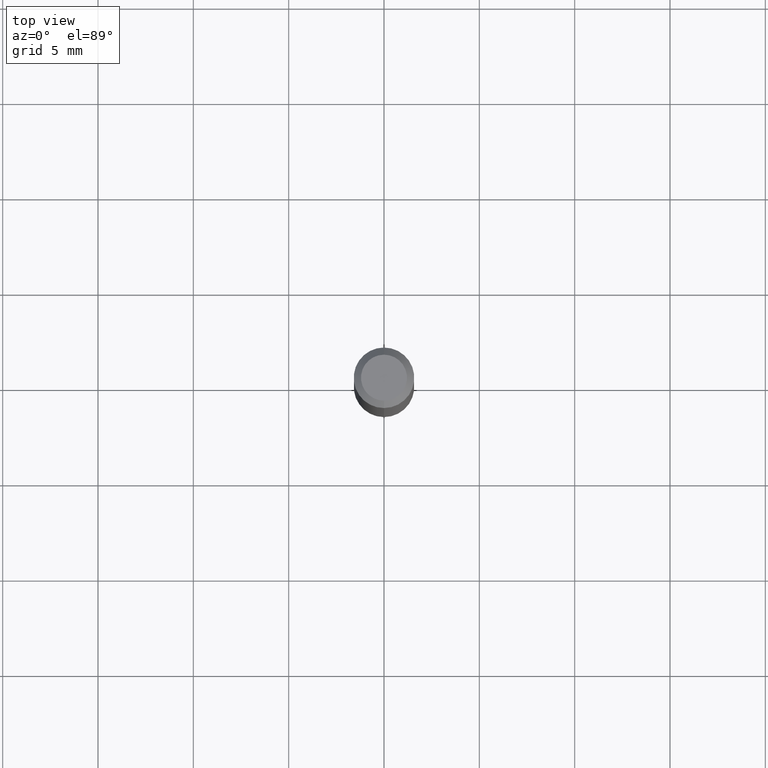
[diagram: clean part render]
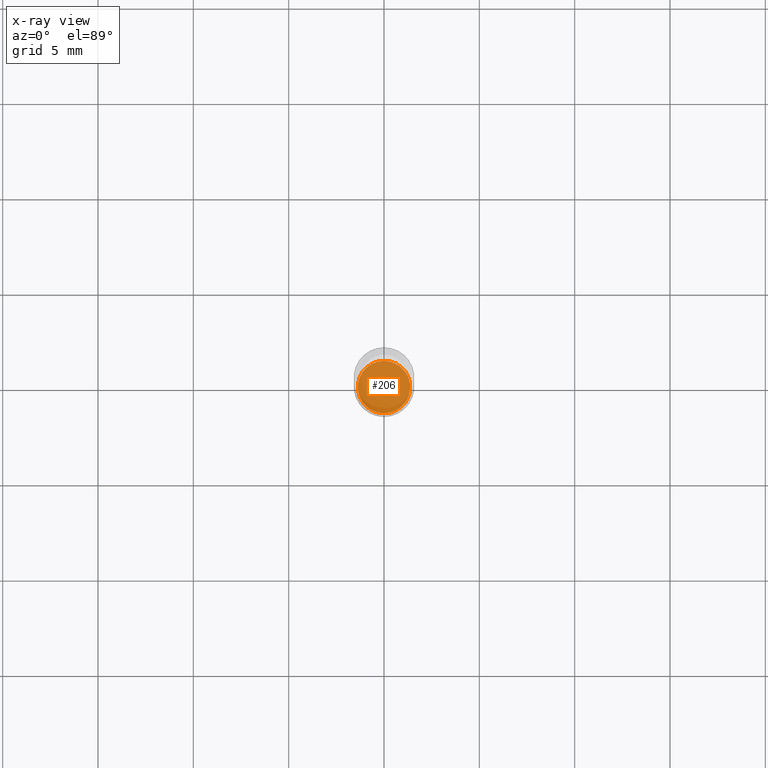
[diagram: x-ray — body ghosted, one internal face saturated and labeled with its STEP entity id]
A machine part, top view, then the same camera in x-ray: the body is ghosted and one INTERNAL B-rep face — a face not visible from any outside direction — is saturated and labeled: STEP entity #206.
In plain terms, the highlighted planar face has unit normal (-0, 0, 1).
Its self-contained STEP definition (entity closure, byte-faithful):
#20 = AXIS2_PLACEMENT_3D ( 'NONE', #40, #198, #89 ) ;
#40 = CARTESIAN_POINT ( 'NONE',  ( 2.750791567104804618E-29, -3.928433249406443724E-15, -1.125000000000000222 ) ) ;
#55 = DIRECTION ( 'NONE',  ( -2.445148059648714686E-29, 3.491940666139061088E-15, 1.000000000000000000 ) ) ;
#58 = EDGE_CURVE ( 'NONE', #65, #387, #85, .T. ) ;
#65 = VERTEX_POINT ( 'NONE', #97 ) ;
#85 = CIRCLE ( 'NONE', #20, 0.05419999999999999818 ) ;
#89 = DIRECTION ( 'NONE',  ( -6.982962677686266711E-15, -1.000000000000000000, 2.520154975705040126E-15 ) ) ;
#97 = CARTESIAN_POINT ( 'NONE',  ( 3.868905196214021993E-16, 0.05419999999999607077, -1.125000000000000222 ) ) ;
#105 = ORIENTED_EDGE ( 'NONE', *, *, #58, .F. ) ;
#109 = AXIS2_PLACEMENT_3D ( 'NONE', #458, #135, #486 ) ;
#135 = DIRECTION ( 'NONE',  ( -2.445148059648714406E-29, 3.491940666139060694E-15, 1.000000000000000000 ) ) ;
#139 = FACE_OUTER_BOUND ( 'NONE', #140, .T. ) ;
#140 = EDGE_LOOP ( 'NONE', ( #400, #105 ) ) ;
#147 = CARTESIAN_POINT ( 'NONE',  ( -3.784765771305681686E-16, -0.05420000000000392559, -1.125000000000000000 ) ) ;
#172 = AXIS2_PLACEMENT_3D ( 'NONE', #341, #55, #399 ) ;
#182 = PLANE ( 'NONE',  #109 ) ;
#198 = DIRECTION ( 'NONE',  ( -2.445148059648714686E-29, 3.491940666139061088E-15, 1.000000000000000000 ) ) ;
#206 = ADVANCED_FACE ( 'NONE', ( #139 ), #182, .F. ) ;
#215 = EDGE_CURVE ( 'NONE', #387, #65, #397, .T. ) ;
#341 = CARTESIAN_POINT ( 'NONE',  ( 2.750791567104804618E-29, -3.928433249406443724E-15, -1.125000000000000222 ) ) ;
#387 = VERTEX_POINT ( 'NONE', #147 ) ;
#397 = CIRCLE ( 'NONE', #172, 0.05419999999999999818 ) ;
#399 = DIRECTION ( 'NONE',  ( -6.982962677686266711E-15, -1.000000000000000000, 2.520154975705040126E-15 ) ) ;
#400 = ORIENTED_EDGE ( 'NONE', *, *, #215, .F. ) ;
#458 = CARTESIAN_POINT ( 'NONE',  ( 2.750791567104804618E-29, -3.928433249406443724E-15, -1.125000000000000222 ) ) ;
#486 = DIRECTION ( 'NONE',  ( -6.982962677686265922E-15, -1.000000000000000000, 3.491940666139060694E-15 ) ) ;